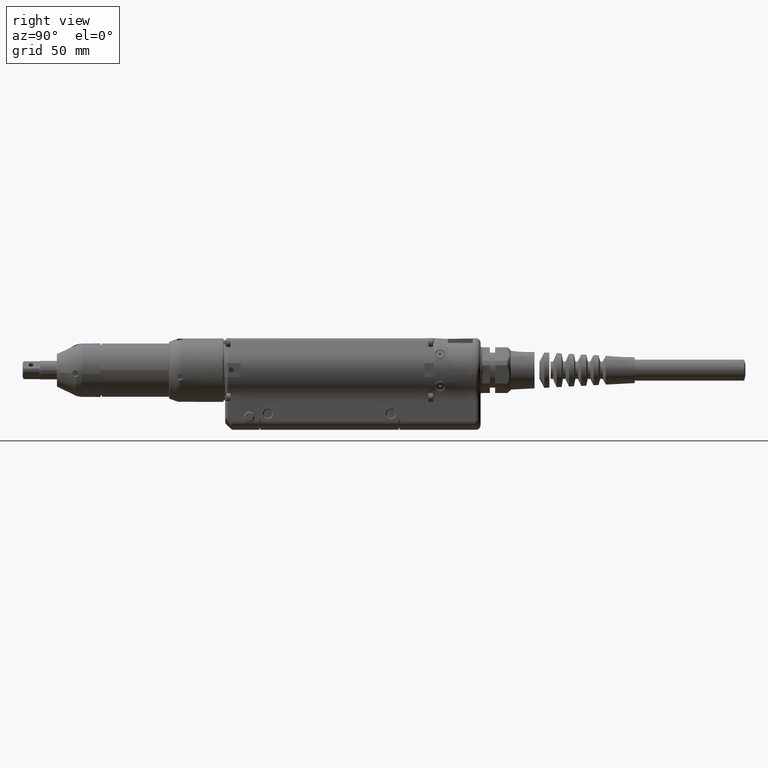
[diagram: clean part render]
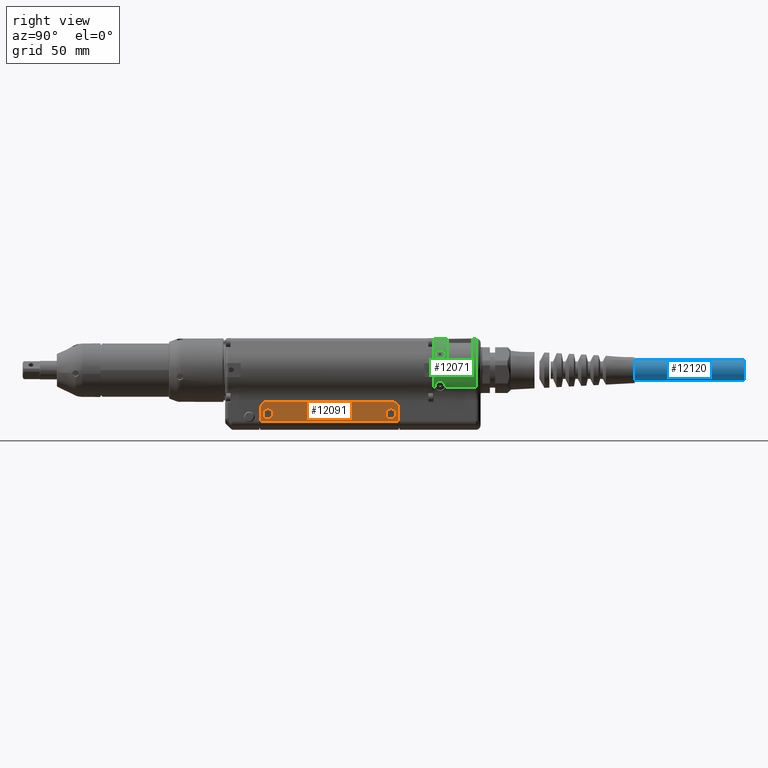
[diagram: same view with three faces highlighted in distinct colors, each labeled with its STEP entity id]
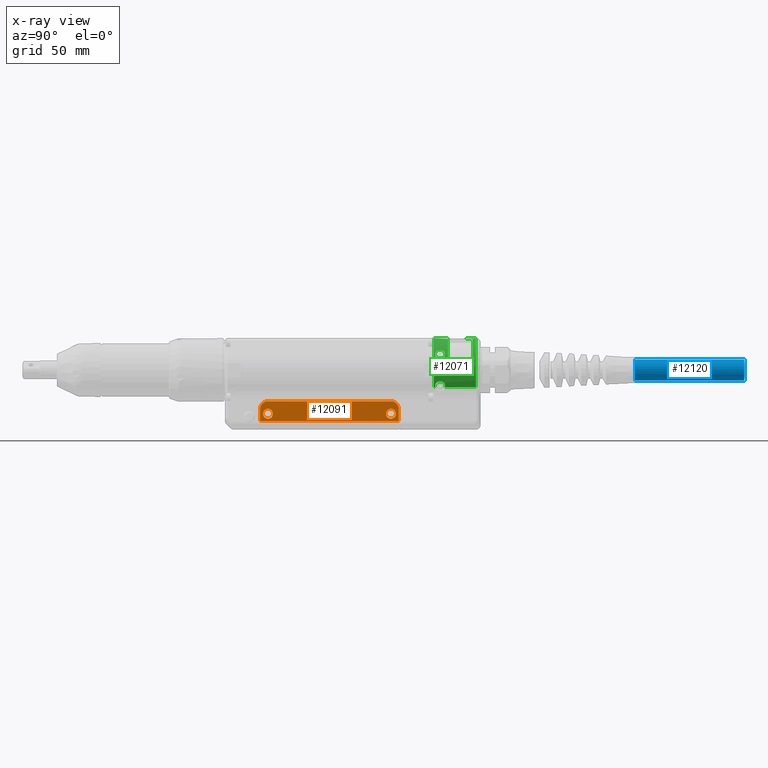
[diagram: x-ray of the same camera — body ghosted, the three highlighted faces saturated]
A machine part, right view with three faces highlighted in distinct colors.
The next image is the same camera in x-ray (body ghosted, the three faces saturated) — at least one of them is partly hidden behind the body in this view.
Their STEP definitions:

[orange] entity #12091 — the highlighted planar face has unit normal (1, -0, -0).
#239=FACE_BOUND('',#2412,.T.);
#240=FACE_BOUND('',#2413,.T.);
#413=PLANE('',#13091);
#1685=FACE_OUTER_BOUND('',#2411,.T.);
#2411=EDGE_LOOP('',(#9232,#9233,#9234,#9235,#9236,#9237));
#2412=EDGE_LOOP('',(#9238));
#2413=EDGE_LOOP('',(#9239));
#3319=LINE('',#19205,#4208);
#3324=LINE('',#19221,#4213);
#3332=LINE('',#19247,#4221);
#3333=LINE('',#19253,#4222);
#4208=VECTOR('',#15129,10.);
#4213=VECTOR('',#15144,10.);
#4221=VECTOR('',#15172,10.);
#4222=VECTOR('',#15179,10.);
#5020=CIRCLE('',#13092,5.);
#5021=CIRCLE('',#13093,5.);
#5022=CIRCLE('',#13094,3.25000059755407);
#5023=CIRCLE('',#13095,3.25000059755407);
#5814=VERTEX_POINT('',#19202);
#5815=VERTEX_POINT('',#19204);
#5820=VERTEX_POINT('',#19218);
#5821=VERTEX_POINT('',#19220);
#5830=VERTEX_POINT('',#19249);
#5831=VERTEX_POINT('',#19251);
#5832=VERTEX_POINT('',#19254);
#5833=VERTEX_POINT('',#19256);
#7105=EDGE_CURVE('',#5814,#5815,#3319,.T.);
#7114=EDGE_CURVE('',#5820,#5821,#3324,.T.);
#7129=EDGE_CURVE('',#5821,#5814,#3332,.T.);
#7130=EDGE_CURVE('',#5815,#5830,#5020,.T.);
#7131=EDGE_CURVE('',#5831,#5820,#5021,.T.);
#7132=EDGE_CURVE('',#5831,#5830,#3333,.T.);
#7133=EDGE_CURVE('',#5832,#5832,#5022,.T.);
#7134=EDGE_CURVE('',#5833,#5833,#5023,.T.);
#9232=ORIENTED_EDGE('',*,*,#7130,.F.);
#9233=ORIENTED_EDGE('',*,*,#7105,.F.);
#9234=ORIENTED_EDGE('',*,*,#7129,.F.);
#9235=ORIENTED_EDGE('',*,*,#7114,.F.);
#9236=ORIENTED_EDGE('',*,*,#7131,.F.);
#9237=ORIENTED_EDGE('',*,*,#7132,.T.);
#9238=ORIENTED_EDGE('',*,*,#7133,.T.);
#9239=ORIENTED_EDGE('',*,*,#7134,.T.);
#12091=ADVANCED_FACE('',(#1685,#239,#240),#413,.T.);
#13091=AXIS2_PLACEMENT_3D('',#19248,#15173,#15174);
#13092=AXIS2_PLACEMENT_3D('',#19250,#15175,#15176);
#13093=AXIS2_PLACEMENT_3D('',#19252,#15177,#15178);
#13094=AXIS2_PLACEMENT_3D('',#19255,#15180,#15181);
#13095=AXIS2_PLACEMENT_3D('',#19257,#15182,#15183);
#15129=DIRECTION('',(6.21206789711975E-13,3.41680368016891E-16,1.));
#15144=DIRECTION('',(-6.21206789711975E-13,-3.41680368016891E-16,-1.));
#15172=DIRECTION('',(-1.14267019239552E-13,-1.,3.41680368087875E-16));
#15173=DIRECTION('center_axis',(1.,-1.14267019239553E-13,-6.21206789711975E-13));
#15174=DIRECTION('ref_axis',(6.21206789711975E-13,3.41680368016891E-16,
1.));
#15175=DIRECTION('center_axis',(-1.,1.14267019239553E-13,6.21206789711975E-13));
#15176=DIRECTION('ref_axis',(3.58336914068951E-13,-0.707106781186547,0.707106781186548));
#15177=DIRECTION('center_axis',(-1.,1.14267019239553E-13,6.21206789711975E-13));
#15178=DIRECTION('ref_axis',(5.19934882409473E-13,0.707106781186548,0.707106781186547));
#15179=DIRECTION('',(-1.14267019239552E-13,-1.,3.41680368087875E-16));
#15180=DIRECTION('center_axis',(-1.,1.14267019239553E-13,6.21206789711975E-13));
#15181=DIRECTION('ref_axis',(-1.14267019239552E-13,-1.,3.41680368087875E-16));
#15182=DIRECTION('center_axis',(-1.,1.14267019239553E-13,6.21206789711975E-13));
#15183=DIRECTION('ref_axis',(-1.14267019239552E-13,-1.,3.41680368087875E-16));
#19202=CARTESIAN_POINT('',(14.9999999999994,22.4999999999972,-32.6993880064032));
#19204=CARTESIAN_POINT('',(15.0000000000042,22.4999999999972,-25.0000000000088));
#19205=CARTESIAN_POINT('',(15.0000000000073,22.4999999999972,-20.0000000000088));
#19218=CARTESIAN_POINT('',(15.0000000000144,111.499999999997,-25.0000000000088));
#19220=CARTESIAN_POINT('',(15.0000000000096,111.499999999997,-32.6993880064032));
#19221=CARTESIAN_POINT('',(15.0000000000175,111.499999999997,-20.0000000000088));
#19247=CARTESIAN_POINT('',(15.0000000000096,111.499999999997,-32.6993880064032));
#19248=CARTESIAN_POINT('Origin',(15.0000000000096,111.499999999997,-32.6993880064032));
#19249=CARTESIAN_POINT('',(15.0000000000079,27.4999999999972,-20.0000000000088));
#19250=CARTESIAN_POINT('Origin',(15.0000000000048,27.4999999999972,-25.0000000000088));
#19251=CARTESIAN_POINT('',(15.0000000000169,106.499999999997,-20.0000000000088));
#19252=CARTESIAN_POINT('Origin',(15.0000000000138,106.499999999997,-25.0000000000088));
#19253=CARTESIAN_POINT('',(15.0000000000175,111.499999999997,-20.0000000000088));
#19254=CARTESIAN_POINT('',(15.0000000000123,109.750000597551,-28.0000000000088));
#19255=CARTESIAN_POINT('Origin',(15.0000000000119,106.499999999997,-28.0000000000088));
#19256=CARTESIAN_POINT('',(15.0000000000033,30.7500005975513,-28.0000000000088));
#19257=CARTESIAN_POINT('Origin',(15.0000000000029,27.4999999999972,-28.0000000000088));

[blue] entity #12120 — the highlighted cylindrical surface (bore or boss wall) has radius 6.75 mm, axis along (0, 1, 0).
#1714=FACE_OUTER_BOUND('',#2448,.T.);
#2448=EDGE_LOOP('',(#9382,#9383,#9384,#9385,#9386));
#3355=LINE('',#19360,#4244);
#4244=VECTOR('',#15315,6.74999999999462);
#5049=CIRCLE('',#13150,6.74999999999505);
#5050=CIRCLE('',#13151,6.74999999999418);
#5051=CIRCLE('',#13152,6.74999999999505);
#5857=VERTEX_POINT('',#19356);
#5858=VERTEX_POINT('',#19357);
#5859=VERTEX_POINT('',#19359);
#7181=EDGE_CURVE('',#5857,#5858,#5049,.T.);
#7182=EDGE_CURVE('',#5857,#5859,#3355,.T.);
#7183=EDGE_CURVE('',#5859,#5859,#5050,.T.);
#7184=EDGE_CURVE('',#5858,#5857,#5051,.T.);
#9382=ORIENTED_EDGE('',*,*,#7181,.F.);
#9383=ORIENTED_EDGE('',*,*,#7182,.T.);
#9384=ORIENTED_EDGE('',*,*,#7183,.T.);
#9385=ORIENTED_EDGE('',*,*,#7182,.F.);
#9386=ORIENTED_EDGE('',*,*,#7184,.F.);
#11758=CYLINDRICAL_SURFACE('',#13149,6.74999999999462);
#12120=ADVANCED_FACE('',(#1714),#11758,.T.);
#13149=AXIS2_PLACEMENT_3D('',#19355,#15311,#15312);
#13150=AXIS2_PLACEMENT_3D('',#19358,#15313,#15314);
#13151=AXIS2_PLACEMENT_3D('',#19361,#15316,#15317);
#13152=AXIS2_PLACEMENT_3D('',#19362,#15318,#15319);
#15311=DIRECTION('center_axis',(3.93858841274555E-13,1.,1.29452016548935E-15));
#15312=DIRECTION('ref_axis',(-0.665763063944601,2.61343272467209E-13,-0.746163214509465));
#15313=DIRECTION('center_axis',(3.93858841274555E-13,1.,1.29452016548935E-15));
#15314=DIRECTION('ref_axis',(0.746163214509465,-2.9302113535668E-13,-0.665763063944601));
#15315=DIRECTION('',(-3.93858841274555E-13,-1.,-1.29452016548935E-15));
#15316=DIRECTION('center_axis',(3.93858841274555E-13,1.,1.29452016548935E-15));
#15317=DIRECTION('ref_axis',(0.746163214509465,-2.9302113535668E-13,-0.665763063944601));
#15318=DIRECTION('center_axis',(3.93858841274555E-13,1.,1.29452016548935E-15));
#15319=DIRECTION('ref_axis',(0.746163214509465,-2.9302113535668E-13,-0.665763063944601));
#19355=CARTESIAN_POINT('Origin',(1.03011646312124E-10,298.110332593401,
6.65049820036084E-13));
#19356=CARTESIAN_POINT('',(4.49390068173931,333.220665186788,5.03660169793558));
#19357=CARTESIAN_POINT('',(-5.03660169781835,333.220665186792,4.49390068162347));
#19358=CARTESIAN_POINT('Origin',(1.1684016122412E-10,333.22066518679,7.10500853595264E-13));
#19359=CARTESIAN_POINT('',(4.49390068171166,263.00000000001,5.03660169793549));
#19360=CARTESIAN_POINT('',(4.49390068172548,298.110332593399,5.03660169793554));
#19361=CARTESIAN_POINT('Origin',(8.91831314001275E-11,263.000000000012,
6.19598786476904E-13));
#19362=CARTESIAN_POINT('Origin',(1.1684016122412E-10,333.22066518679,7.10500853595264E-13));

[green] entity #12071 — the highlighted cylindrical surface (edge-blend (fillet) strip) has radius 20.5 mm, axis along (0, 1, 0).
#231=FACE_BOUND('',#2384,.T.);
#232=FACE_BOUND('',#2385,.T.);
#233=FACE_BOUND('',#2386,.T.);
#234=FACE_BOUND('',#2387,.T.);
#1401=B_SPLINE_CURVE_WITH_KNOTS('',3,(#18990,#18991,#18992,#18993,#18994,
#18995,#18996,#18997,#18998,#18999,#19000,#19001),.UNSPECIFIED.,.F.,.F.,
(4,2,2,2,2,4),(0.416893829124333,0.498158843580507,0.62269710965569,0.747235375730873,
0.871776531445943,0.996317687161014),.UNSPECIFIED.);
#1402=B_SPLINE_CURVE_WITH_KNOTS('',3,(#19003,#19004,#19005,#19006,#19007,
#19008,#19009,#19010,#19011,#19012,#19013,#19014),.UNSPECIFIED.,.F.,.F.,
(4,2,2,2,2,4),(0.996317687161014,1.12085884287608,1.24539999859115,1.36993826466634,
1.49447653074152,1.57574154519769),.UNSPECIFIED.);
#1403=B_SPLINE_CURVE_WITH_KNOTS('',3,(#19019,#19020,#19021,#19022,#19023,
#19024,#19025,#19026,#19027,#19028,#19029,#19030),.UNSPECIFIED.,.F.,.F.,
(4,2,2,2,2,4),(0.416893829124334,0.498158843580507,0.62269710965569,0.747235375730874,
0.871776531445944,0.996317687161014),.UNSPECIFIED.);
#1404=B_SPLINE_CURVE_WITH_KNOTS('',3,(#19031,#19032,#19033,#19034,#19035,
#19036,#19037,#19038,#19039,#19040,#19041,#19042),.UNSPECIFIED.,.F.,.F.,
(4,2,2,2,2,4),(0.996317687161014,1.12085884287608,1.24539999859115,1.36993826466634,
1.49447653074152,1.57574154519769),.UNSPECIFIED.);
#1405=B_SPLINE_CURVE_WITH_KNOTS('',3,(#19046,#19047,#19048,#19049,#19050,
#19051,#19052,#19053,#19054,#19055),.UNSPECIFIED.,.F.,.F.,(4,2,2,2,4),(0.498158843580509,
0.622697109655693,0.747235375730876,0.871776531445947,0.996317687161018),
 .UNSPECIFIED.);
#1406=B_SPLINE_CURVE_WITH_KNOTS('',3,(#19057,#19058,#19059,#19060,#19061,
#19062,#19063,#19064,#19065,#19066),.UNSPECIFIED.,.F.,.F.,(4,2,2,2,4),(0.996317687161018,
1.12085884287609,1.24539999859116,1.36993826466634,1.49447653074153),
 .UNSPECIFIED.);
#1407=B_SPLINE_CURVE_WITH_KNOTS('',3,(#19067,#19068,#19069,#19070,#19071,
#19072,#19073,#19074,#19075,#19076,#19077,#19078,#19079,#19080,#19081,#19082,
#19083,#19084,#19085),.UNSPECIFIED.,.F.,.F.,(4,2,2,2,3,2,2,2,4),(1.49447653074153,
1.61901479681671,1.74355306289189,1.86809421860696,1.99263537432204,2.11717653003711,
2.24171768575218,2.36625595182736,2.49079421790254),.UNSPECIFIED.);
#1408=B_SPLINE_CURVE_WITH_KNOTS('',3,(#19088,#19089,#19090,#19091,#19092,
#19093,#19094,#19095,#19096,#19097),.UNSPECIFIED.,.F.,.F.,(4,2,2,2,4),(0.498158843580509,
0.622697109655693,0.747235375730876,0.871776531445947,0.996317687161018),
 .UNSPECIFIED.);
#1409=B_SPLINE_CURVE_WITH_KNOTS('',3,(#19099,#19100,#19101,#19102,#19103,
#19104,#19105,#19106,#19107,#19108),.UNSPECIFIED.,.F.,.F.,(4,2,2,2,4),(0.996317687161018,
1.12085884287609,1.24539999859116,1.36993826466634,1.49447653074153),
 .UNSPECIFIED.);
#1410=B_SPLINE_CURVE_WITH_KNOTS('',3,(#19109,#19110,#19111,#19112,#19113,
#19114,#19115,#19116,#19117,#19118,#19119,#19120,#19121,#19122,#19123,#19124,
#19125,#19126,#19127),.UNSPECIFIED.,.F.,.F.,(4,2,2,2,3,2,2,2,4),(1.49447653074153,
1.61901479681671,1.74355306289189,1.86809421860696,1.99263537432204,2.11717653003711,
2.24171768575218,2.36625595182736,2.49079421790254),.UNSPECIFIED.);
#1665=FACE_OUTER_BOUND('',#2383,.T.);
#2383=EDGE_LOOP('',(#9085,#9086,#9087,#9088,#9089,#9090,#9091,#9092,#9093,
#9094,#9095,#9096,#9097,#9098,#9099,#9100,#9101,#9102,#9103,#9104,#9105));
#2384=EDGE_LOOP('',(#9106,#9107,#9108));
#2385=EDGE_LOOP('',(#9109,#9110,#9111,#9112));
#2386=EDGE_LOOP('',(#9113,#9114,#9115,#9116));
#2387=EDGE_LOOP('',(#9117,#9118,#9119));
#3284=LINE('',#18889,#4173);
#3286=LINE('',#18896,#4175);
#3294=LINE('',#18953,#4183);
#3297=LINE('',#18962,#4186);
#3302=LINE('',#18977,#4191);
#3305=LINE('',#18986,#4194);
#3306=LINE('',#19015,#4195);
#3307=LINE('',#19043,#4196);
#4173=VECTOR('',#14956,10.);
#4175=VECTOR('',#14962,10.);
#4183=VECTOR('',#15016,10.);
#4186=VECTOR('',#15027,10.);
#4191=VECTOR('',#15040,10.);
#4194=VECTOR('',#15051,10.);
#4195=VECTOR('',#15054,10.);
#4196=VECTOR('',#15059,10.);
#4812=CIRCLE('',#12711,20.5);
#4927=CIRCLE('',#12921,20.5);
#4929=CIRCLE('',#12925,20.5);
#4931=CIRCLE('',#12929,20.5);
#4935=CIRCLE('',#12939,20.5);
#4954=CIRCLE('',#12963,20.5);
#4960=CIRCLE('',#12987,20.5);
#4961=CIRCLE('',#12989,20.5);
#4962=CIRCLE('',#12991,20.5);
#4964=CIRCLE('',#12996,20.5);
#4984=CIRCLE('',#13027,20.5);
#4986=CIRCLE('',#13030,20.5);
#4988=CIRCLE('',#13034,20.5);
#4990=CIRCLE('',#13038,20.5);
#4992=CIRCLE('',#13042,20.5);
#4993=CIRCLE('',#13045,20.5);
#4994=CIRCLE('',#13046,20.5);
#5466=VERTEX_POINT('',#17827);
#5467=VERTEX_POINT('',#17829);
#5694=VERTEX_POINT('',#18642);
#5695=VERTEX_POINT('',#18644);
#5696=VERTEX_POINT('',#18648);
#5698=VERTEX_POINT('',#18654);
#5699=VERTEX_POINT('',#18656);
#5700=VERTEX_POINT('',#18660);
#5702=VERTEX_POINT('',#18666);
#5708=VERTEX_POINT('',#18691);
#5730=VERTEX_POINT('',#18745);
#5750=VERTEX_POINT('',#18816);
#5751=VERTEX_POINT('',#18820);
#5765=VERTEX_POINT('',#18869);
#5766=VERTEX_POINT('',#18870);
#5769=VERTEX_POINT('',#18894);
#5771=VERTEX_POINT('',#18906);
#5774=VERTEX_POINT('',#18943);
#5775=VERTEX_POINT('',#18945);
#5777=VERTEX_POINT('',#18951);
#5779=VERTEX_POINT('',#18957);
#5782=VERTEX_POINT('',#18967);
#5783=VERTEX_POINT('',#18969);
#5785=VERTEX_POINT('',#18975);
#5787=VERTEX_POINT('',#18981);
#5788=VERTEX_POINT('',#18988);
#5789=VERTEX_POINT('',#18989);
#5790=VERTEX_POINT('',#19002);
#5791=VERTEX_POINT('',#19018);
#5792=VERTEX_POINT('',#19044);
#5793=VERTEX_POINT('',#19045);
#5794=VERTEX_POINT('',#19056);
#5795=VERTEX_POINT('',#19086);
#5796=VERTEX_POINT('',#19087);
#5797=VERTEX_POINT('',#19098);
#6584=EDGE_CURVE('',#5466,#5467,#4812,.T.);
#6907=EDGE_CURVE('',#5695,#5694,#4927,.T.);
#6914=EDGE_CURVE('',#5698,#5699,#4929,.T.);
#6919=EDGE_CURVE('',#5700,#5702,#4931,.T.);
#6932=EDGE_CURVE('',#5696,#5708,#4935,.T.);
#6958=EDGE_CURVE('',#5467,#5730,#4954,.T.);
#7001=EDGE_CURVE('',#5695,#5466,#4960,.T.);
#7002=EDGE_CURVE('',#5750,#5702,#4961,.T.);
#7003=EDGE_CURVE('',#5730,#5751,#4962,.T.);
#7011=EDGE_CURVE('',#5696,#5694,#4964,.T.);
#7022=EDGE_CURVE('',#5766,#5708,#3284,.T.);
#7026=EDGE_CURVE('',#5769,#5765,#3286,.T.);
#7040=EDGE_CURVE('',#5771,#5769,#4984,.T.);
#7043=EDGE_CURVE('',#5775,#5774,#4986,.T.);
#7047=EDGE_CURVE('',#5774,#5777,#3294,.T.);
#7050=EDGE_CURVE('',#5777,#5779,#4988,.T.);
#7052=EDGE_CURVE('',#5779,#5775,#3297,.T.);
#7055=EDGE_CURVE('',#5783,#5782,#4990,.T.);
#7059=EDGE_CURVE('',#5782,#5785,#3302,.T.);
#7062=EDGE_CURVE('',#5785,#5787,#4992,.T.);
#7064=EDGE_CURVE('',#5787,#5783,#3305,.T.);
#7065=EDGE_CURVE('',#5788,#5789,#1401,.T.);
#7066=EDGE_CURVE('',#5789,#5790,#1402,.T.);
#7067=EDGE_CURVE('',#5698,#5790,#3306,.T.);
#7068=EDGE_CURVE('',#5700,#5699,#4993,.T.);
#7069=EDGE_CURVE('',#5751,#5750,#4994,.T.);
#7070=EDGE_CURVE('',#5766,#5791,#1403,.T.);
#7071=EDGE_CURVE('',#5791,#5765,#1404,.T.);
#7072=EDGE_CURVE('',#5788,#5771,#3307,.T.);
#7073=EDGE_CURVE('',#5792,#5793,#1405,.T.);
#7074=EDGE_CURVE('',#5793,#5794,#1406,.T.);
#7075=EDGE_CURVE('',#5794,#5792,#1407,.T.);
#7076=EDGE_CURVE('',#5795,#5796,#1408,.T.);
#7077=EDGE_CURVE('',#5796,#5797,#1409,.T.);
#7078=EDGE_CURVE('',#5797,#5795,#1410,.T.);
#9085=ORIENTED_EDGE('',*,*,#7065,.T.);
#9086=ORIENTED_EDGE('',*,*,#7066,.T.);
#9087=ORIENTED_EDGE('',*,*,#7067,.F.);
#9088=ORIENTED_EDGE('',*,*,#6914,.T.);
#9089=ORIENTED_EDGE('',*,*,#7068,.F.);
#9090=ORIENTED_EDGE('',*,*,#6919,.T.);
#9091=ORIENTED_EDGE('',*,*,#7002,.F.);
#9092=ORIENTED_EDGE('',*,*,#7069,.F.);
#9093=ORIENTED_EDGE('',*,*,#7003,.F.);
#9094=ORIENTED_EDGE('',*,*,#6958,.F.);
#9095=ORIENTED_EDGE('',*,*,#6584,.F.);
#9096=ORIENTED_EDGE('',*,*,#7001,.F.);
#9097=ORIENTED_EDGE('',*,*,#6907,.T.);
#9098=ORIENTED_EDGE('',*,*,#7011,.F.);
#9099=ORIENTED_EDGE('',*,*,#6932,.T.);
#9100=ORIENTED_EDGE('',*,*,#7022,.F.);
#9101=ORIENTED_EDGE('',*,*,#7070,.T.);
#9102=ORIENTED_EDGE('',*,*,#7071,.T.);
#9103=ORIENTED_EDGE('',*,*,#7026,.F.);
#9104=ORIENTED_EDGE('',*,*,#7040,.F.);
#9105=ORIENTED_EDGE('',*,*,#7072,.F.);
#9106=ORIENTED_EDGE('',*,*,#7073,.T.);
#9107=ORIENTED_EDGE('',*,*,#7074,.T.);
#9108=ORIENTED_EDGE('',*,*,#7075,.T.);
#9109=ORIENTED_EDGE('',*,*,#7047,.T.);
#9110=ORIENTED_EDGE('',*,*,#7050,.T.);
#9111=ORIENTED_EDGE('',*,*,#7052,.T.);
#9112=ORIENTED_EDGE('',*,*,#7043,.T.);
#9113=ORIENTED_EDGE('',*,*,#7059,.T.);
#9114=ORIENTED_EDGE('',*,*,#7062,.T.);
#9115=ORIENTED_EDGE('',*,*,#7064,.T.);
#9116=ORIENTED_EDGE('',*,*,#7055,.T.);
#9117=ORIENTED_EDGE('',*,*,#7076,.T.);
#9118=ORIENTED_EDGE('',*,*,#7077,.T.);
#9119=ORIENTED_EDGE('',*,*,#7078,.T.);
#11740=CYLINDRICAL_SURFACE('',#13044,20.5);
#12071=ADVANCED_FACE('',(#1665,#231,#232,#233,#234),#11740,.T.);
#12711=AXIS2_PLACEMENT_3D('',#17830,#14127,#14128);
#12921=AXIS2_PLACEMENT_3D('',#18645,#14715,#14716);
#12925=AXIS2_PLACEMENT_3D('',#18658,#14728,#14729);
#12929=AXIS2_PLACEMENT_3D('',#18668,#14739,#14740);
#12939=AXIS2_PLACEMENT_3D('',#18693,#14768,#14769);
#12963=AXIS2_PLACEMENT_3D('',#18746,#14823,#14824);
#12987=AXIS2_PLACEMENT_3D('',#18828,#14908,#14909);
#12989=AXIS2_PLACEMENT_3D('',#18830,#14912,#14913);
#12991=AXIS2_PLACEMENT_3D('',#18832,#14916,#14917);
#12996=AXIS2_PLACEMENT_3D('',#18848,#14932,#14933);
#13027=AXIS2_PLACEMENT_3D('',#18938,#15002,#15003);
#13030=AXIS2_PLACEMENT_3D('',#18946,#15009,#15010);
#13034=AXIS2_PLACEMENT_3D('',#18959,#15022,#15023);
#13038=AXIS2_PLACEMENT_3D('',#18970,#15033,#15034);
#13042=AXIS2_PLACEMENT_3D('',#18983,#15046,#15047);
#13044=AXIS2_PLACEMENT_3D('',#18987,#15052,#15053);
#13045=AXIS2_PLACEMENT_3D('',#19016,#15055,#15056);
#13046=AXIS2_PLACEMENT_3D('',#19017,#15057,#15058);
#14127=DIRECTION('center_axis',(-2.99063832450032E-13,-1.,-6.66133814775047E-16));
#14128=DIRECTION('ref_axis',(1.,-2.99063832450031E-13,-6.19370871729231E-13));
#14715=DIRECTION('center_axis',(1.14883432544903E-13,1.,6.08366502839908E-16));
#14716=DIRECTION('ref_axis',(-0.866025403784749,9.97961543092976E-14,-0.499999999999462));
#14728=DIRECTION('center_axis',(1.14883432544903E-13,1.,6.08366502839908E-16));
#14729=DIRECTION('ref_axis',(0.731707317073593,-8.4475722344597E-14,0.681618956705991));
#14739=DIRECTION('center_axis',(1.14883432544903E-13,1.,6.08366502839908E-16));
#14740=DIRECTION('ref_axis',(0.975609756097424,-1.11947853738291E-13,-0.219512195122558));
#14768=DIRECTION('center_axis',(1.14883432544903E-13,1.,6.08366502839908E-16));
#14769=DIRECTION('ref_axis',(-0.975609756097425,1.11947853738291E-13,0.219512195122557));
#14823=DIRECTION('center_axis',(-1.14883432544903E-13,-1.,-6.08366502839908E-16));
#14824=DIRECTION('ref_axis',(1.,-2.99063832450031E-13,-6.19370871729231E-13));
#14908=DIRECTION('center_axis',(-1.14883432544903E-13,-1.,-6.08366502839908E-16));
#14909=DIRECTION('ref_axis',(1.,-2.99063832450031E-13,-6.19370871729231E-13));
#14912=DIRECTION('center_axis',(-1.14883432544903E-13,-1.,-6.08366502839908E-16));
#14913=DIRECTION('ref_axis',(1.,-2.99063832450031E-13,-6.19370871729231E-13));
#14916=DIRECTION('center_axis',(-1.14883432544903E-13,-1.,-6.08366502839908E-16));
#14917=DIRECTION('ref_axis',(1.,-2.99063832450031E-13,-6.19370871729231E-13));
#14932=DIRECTION('center_axis',(-2.99063832450032E-13,-1.,-6.66133814775047E-16));
#14933=DIRECTION('ref_axis',(1.,-2.99063832450031E-13,-6.19370871729231E-13));
#14956=DIRECTION('',(-2.99063832450032E-13,-1.,-6.66133814775047E-16));
#14962=DIRECTION('',(-2.99063832450032E-13,-1.,-6.66133814775047E-16));
#15002=DIRECTION('center_axis',(2.99063832450032E-13,1.,6.66133814775047E-16));
#15003=DIRECTION('ref_axis',(6.19432104069188E-13,-6.66133814960297E-16,
1.));
#15009=DIRECTION('center_axis',(2.99063832450032E-13,1.,6.66133814775047E-16));
#15010=DIRECTION('ref_axis',(1.,-2.99063832450031E-13,-6.19370871729231E-13));
#15016=DIRECTION('',(-2.99063832450032E-13,-1.,-6.66133814775047E-16));
#15022=DIRECTION('center_axis',(-2.99063832450032E-13,-1.,-6.66133814775047E-16));
#15023=DIRECTION('ref_axis',(1.,-2.99063832450031E-13,-6.19370871729231E-13));
#15027=DIRECTION('',(2.99063832450032E-13,1.,6.66133814775047E-16));
#15033=DIRECTION('center_axis',(2.99063832450032E-13,1.,6.66133814775047E-16));
#15034=DIRECTION('ref_axis',(1.,-2.99063832450031E-13,-6.19370871729231E-13));
#15040=DIRECTION('',(-2.99063832450032E-13,-1.,-6.66133814775047E-16));
#15046=DIRECTION('center_axis',(-2.99063832450032E-13,-1.,-6.66133814775047E-16));
#15047=DIRECTION('ref_axis',(1.,-2.99063832450031E-13,-6.19370871729231E-13));
#15051=DIRECTION('',(2.99063832450032E-13,1.,6.66133814775047E-16));
#15052=DIRECTION('center_axis',(2.99063832450032E-13,1.,6.66133814775047E-16));
#15053=DIRECTION('ref_axis',(9.40707762640804E-13,-6.66133815056353E-16,
1.));
#15054=DIRECTION('',(2.99063832450032E-13,1.,6.66133814775047E-16));
#15055=DIRECTION('center_axis',(-2.99063832450032E-13,-1.,-6.66133814775047E-16));
#15056=DIRECTION('ref_axis',(1.,-2.99063832450031E-13,-6.19370871729231E-13));
#15057=DIRECTION('center_axis',(-2.99063832450032E-13,-1.,-6.66133814775047E-16));
#15058=DIRECTION('ref_axis',(1.,-2.99063832450031E-13,-6.19370871729231E-13));
#15059=DIRECTION('',(2.99063832450032E-13,1.,6.66133814775047E-16));
#17827=CARTESIAN_POINT('',(14.4913767462239,133.999999999995,14.4999999999915));
#17829=CARTESIAN_POINT('',(7.00000000001281,133.999999999997,19.2678488680028));
#17830=CARTESIAN_POINT('Origin',(2.54800915762334E-11,133.999999999999,
4.73876448670893E-13));
#18642=CARTESIAN_POINT('',(20.0000000000036,133.999999999997,4.49999999998808));
#18644=CARTESIAN_POINT('',(17.7535207775882,133.999999999997,10.2499999999895));
#18645=CARTESIAN_POINT('Origin',(8.54285863358099E-13,133.999999999999,
4.738764486709E-13));
#18648=CARTESIAN_POINT('',(19.9999999999981,133.999999999997,-4.50000000001195));
#18654=CARTESIAN_POINT('',(-17.3239436619778,134.000000000001,-10.9604277287239));
#18656=CARTESIAN_POINT('',(-20.0000000000019,134.000000000001,-4.49999999998713));
#18658=CARTESIAN_POINT('Origin',(8.54285863358099E-13,133.999999999999,
4.738764486709E-13));
#18660=CARTESIAN_POINT('',(-19.9999999999964,134.000000000001,4.50000000001291));
#18666=CARTESIAN_POINT('',(-17.7535207775738,134.000000000001,10.2500000000115));
#18668=CARTESIAN_POINT('Origin',(8.54285863358099E-13,133.999999999999,
4.738764486709E-13));
#18691=CARTESIAN_POINT('',(17.3239436619659,133.999999999997,-10.9604277287454));
#18693=CARTESIAN_POINT('Origin',(8.54285863358099E-13,133.999999999999,
4.738764486709E-13));
#18745=CARTESIAN_POINT('',(3.81988065463392E-11,133.999999999999,20.5000000000005));
#18746=CARTESIAN_POINT('Origin',(2.54800915762325E-11,133.999999999996,
4.73876448670891E-13));
#18816=CARTESIAN_POINT('',(-14.491376746155,134.000000000003,14.5000000000095));
#18820=CARTESIAN_POINT('',(-6.99999999998719,134.000000000001,19.2678488679936));
#18828=CARTESIAN_POINT('Origin',(2.54800915762325E-11,133.999999999996,
4.73876448670891E-13));
#18830=CARTESIAN_POINT('Origin',(2.54800915762325E-11,133.999999999996,
4.73876448670891E-13));
#18832=CARTESIAN_POINT('Origin',(2.54800915762325E-11,133.999999999996,
4.73876448670891E-13));
#18848=CARTESIAN_POINT('Origin',(2.54800915762334E-11,133.999999999999,
4.73876448670893E-13));
#18869=CARTESIAN_POINT('',(17.3239436619927,141.193906471388,-10.9604277287454));
#18870=CARTESIAN_POINT('',(17.3239436619908,134.806093528599,-10.9604277287454));
#18889=CARTESIAN_POINT('',(17.3239436619905,133.999999999994,-10.9604277287454));
#18894=CARTESIAN_POINT('',(17.3239436619986,160.999999999994,-10.9604277287454));
#18896=CARTESIAN_POINT('',(17.3239436619905,133.999999999994,-10.9604277287454));
#18906=CARTESIAN_POINT('',(-17.3239436619451,161.000000000004,-10.9604277287239));
#18938=CARTESIAN_POINT('Origin',(3.35548150523843E-11,160.999999999999,
4.9186206166982E-13));
#18943=CARTESIAN_POINT('',(-3.99999999995459,159.,20.1059692628861));
#18945=CARTESIAN_POINT('',(-20.2792997906421,159.000000000005,-2.99999999998695));
#18946=CARTESIAN_POINT('Origin',(3.29566873874842E-11,158.999999999999,
4.9052979404027E-13));
#18951=CARTESIAN_POINT('',(-3.99999999995937,143.,20.1059692628861));
#18953=CARTESIAN_POINT('',(-3.99999999996206,134.,20.1059692628861));
#18957=CARTESIAN_POINT('',(-20.2792997906469,143.000000000005,-2.99999999998696));
#18959=CARTESIAN_POINT('Origin',(2.81716660682837E-11,142.999999999999,
4.79871653003869E-13));
#18962=CARTESIAN_POINT('',(-20.2792997906496,134.000000000005,-2.99999999998696));
#18967=CARTESIAN_POINT('',(20.2792997907044,158.999999999993,-3.00000000001207));
#18969=CARTESIAN_POINT('',(4.00000000004541,158.999999999998,20.1059692628811));
#18970=CARTESIAN_POINT('Origin',(3.29566873874842E-11,158.999999999999,
4.9052979404027E-13));
#18975=CARTESIAN_POINT('',(20.2792997906996,142.999999999993,-3.00000000001208));
#18977=CARTESIAN_POINT('',(20.2792997906969,133.999999999993,-3.00000000001209));
#18981=CARTESIAN_POINT('',(4.00000000004063,142.999999999998,20.1059692628811));
#18983=CARTESIAN_POINT('Origin',(2.81716660682837E-11,142.999999999999,
4.79871653003869E-13));
#18986=CARTESIAN_POINT('',(4.00000000003793,133.999999999998,20.1059692628811));
#18987=CARTESIAN_POINT('Origin',(2.54800915762334E-11,133.999999999999,
4.73876448670893E-13));
#18988=CARTESIAN_POINT('',(-17.323943661951,141.193906471399,-10.9604277287239));
#18989=CARTESIAN_POINT('',(-19.1719861887636,138.000000000005,-7.25843961033139));
#18990=CARTESIAN_POINT('Ctrl Pts',(-17.323943661951,141.193906471399,-10.9604277287239));
#18991=CARTESIAN_POINT('Ctrl Pts',(-17.4718402988617,141.265736102992,-10.7266637672206));
#18992=CARTESIAN_POINT('Ctrl Pts',(-17.6180790867995,141.300000000004,-10.4845918898485));
#18993=CARTESIAN_POINT('Ctrl Pts',(-17.9610845543514,141.300000000004,-9.89048899277381));
#18994=CARTESIAN_POINT('Ctrl Pts',(-18.1702076668436,141.216888987846,-9.50049270622778));
#18995=CARTESIAN_POINT('Ctrl Pts',(-18.5331469211265,140.879885821676,-8.77144648986339));
#18996=CARTESIAN_POINT('Ctrl Pts',(-18.6875995685963,140.626033304569,-8.43269527789733));
#18997=CARTESIAN_POINT('Ctrl Pts',(-18.9221223393258,140.040864662566,-7.89240251674596));
#18998=CARTESIAN_POINT('Ctrl Pts',(-19.0180255174553,139.670274103298,-7.65465475337624));
#18999=CARTESIAN_POINT('Ctrl Pts',(-19.1426386324182,138.857441942713,-7.33746689889183));
#19000=CARTESIAN_POINT('Ctrl Pts',(-19.1719861887635,138.415137185722,-7.25843961033139));
#19001=CARTESIAN_POINT('Ctrl Pts',(-19.1719861887636,138.000000000005,-7.2584396103314));
#19002=CARTESIAN_POINT('',(-17.3239436619529,134.80609352861,-10.9604277287239));
#19003=CARTESIAN_POINT('Ctrl Pts',(-19.1719861887636,138.000000000005,-7.25843961033139));
#19004=CARTESIAN_POINT('Ctrl Pts',(-19.1719861887637,137.584862814288,-7.2584396103314));
#19005=CARTESIAN_POINT('Ctrl Pts',(-19.1426386324187,137.142558057296,-7.33746689889183));
#19006=CARTESIAN_POINT('Ctrl Pts',(-19.0180255174563,136.329725896711,-7.65465475337624));
#19007=CARTESIAN_POINT('Ctrl Pts',(-18.922122339327,135.959135337443,-7.89240251674597));
#19008=CARTESIAN_POINT('Ctrl Pts',(-18.6875995685978,135.37396669544,-8.43269527789733));
#19009=CARTESIAN_POINT('Ctrl Pts',(-18.5331469211282,135.120114178333,-8.7714464898634));
#19010=CARTESIAN_POINT('Ctrl Pts',(-18.1702076668455,134.783111012163,-9.50049270622779));
#19011=CARTESIAN_POINT('Ctrl Pts',(-17.9610845543534,134.700000000004,-9.89048899277382));
#19012=CARTESIAN_POINT('Ctrl Pts',(-17.6180790868015,134.700000000004,-10.4845918898485));
#19013=CARTESIAN_POINT('Ctrl Pts',(-17.4718402988636,134.734263897017,-10.7266637672206));
#19014=CARTESIAN_POINT('Ctrl Pts',(-17.3239436619529,134.80609352861,-10.9604277287239));
#19015=CARTESIAN_POINT('',(-17.3239436619531,134.000000000004,-10.9604277287239));
#19016=CARTESIAN_POINT('Origin',(2.54800915762334E-11,133.999999999999,
4.73876448670893E-13));
#19017=CARTESIAN_POINT('Origin',(2.54800915762334E-11,133.999999999999,
4.73876448670893E-13));
#19018=CARTESIAN_POINT('',(19.171986188808,137.999999999993,-7.25843961035515));
#19019=CARTESIAN_POINT('Ctrl Pts',(17.3239436619908,134.806093528599,-10.9604277287454));
#19020=CARTESIAN_POINT('Ctrl Pts',(17.4718402989017,134.734263897006,-10.7266637672423));
#19021=CARTESIAN_POINT('Ctrl Pts',(17.6180790868399,134.699999999994,-10.4845918898703));
#19022=CARTESIAN_POINT('Ctrl Pts',(17.9610845543925,134.699999999994,-9.89048899279607));
#19023=CARTESIAN_POINT('Ctrl Pts',(18.1702076668852,134.783111012152,-9.5004927062503));
#19024=CARTESIAN_POINT('Ctrl Pts',(18.5331469211689,135.120114178322,-8.77144648988635));
#19025=CARTESIAN_POINT('Ctrl Pts',(18.6875995686392,135.373966695429,-8.43269527792048));
#19026=CARTESIAN_POINT('Ctrl Pts',(18.9221223393693,135.959135337431,-7.89240251676941));
#19027=CARTESIAN_POINT('Ctrl Pts',(19.0180255174992,136.3297258967,-7.6546547533998));
#19028=CARTESIAN_POINT('Ctrl Pts',(19.1426386324625,137.142558057284,-7.33746689891554));
#19029=CARTESIAN_POINT('Ctrl Pts',(19.1719861888078,137.584862814276,-7.25843961035515));
#19030=CARTESIAN_POINT('Ctrl Pts',(19.171986188808,137.999999999993,-7.25843961035515));
#19031=CARTESIAN_POINT('Ctrl Pts',(19.171986188808,137.999999999993,-7.25843961035515));
#19032=CARTESIAN_POINT('Ctrl Pts',(19.1719861888081,138.41513718571,-7.25843961035515));
#19033=CARTESIAN_POINT('Ctrl Pts',(19.142638632463,138.857441942702,-7.33746689891554));
#19034=CARTESIAN_POINT('Ctrl Pts',(19.0180255175002,139.670274103286,-7.6546547533998));
#19035=CARTESIAN_POINT('Ctrl Pts',(18.9221223393706,140.040864662555,-7.8924025167694));
#19036=CARTESIAN_POINT('Ctrl Pts',(18.6875995686408,140.626033304558,-8.43269527792047));
#19037=CARTESIAN_POINT('Ctrl Pts',(18.5331469211707,140.879885821665,-8.77144648988635));
#19038=CARTESIAN_POINT('Ctrl Pts',(18.1702076668871,141.216888987835,-9.50049270625029));
#19039=CARTESIAN_POINT('Ctrl Pts',(17.9610845543945,141.299999999994,-9.89048899279606));
#19040=CARTESIAN_POINT('Ctrl Pts',(17.6180790868419,141.299999999994,-10.4845918898703));
#19041=CARTESIAN_POINT('Ctrl Pts',(17.4718402989037,141.265736102981,-10.7266637672423));
#19042=CARTESIAN_POINT('Ctrl Pts',(17.3239436619927,141.193906471388,-10.9604277287454));
#19043=CARTESIAN_POINT('',(-17.3239436619531,134.000000000004,-10.9604277287239));
#19044=CARTESIAN_POINT('',(17.753520777613,134.699999999994,10.2499999999895));
#19045=CARTESIAN_POINT('',(15.8719861888205,137.999999999994,12.9742072753117));
#19046=CARTESIAN_POINT('Ctrl Pts',(17.753520777613,134.699999999994,10.2499999999895));
#19047=CARTESIAN_POINT('Ctrl Pts',(17.5459570008213,134.699999999994,10.6095110072042));
#19048=CARTESIAN_POINT('Ctrl Pts',(17.3127718655374,134.783111012152,10.9856150784142));
#19049=CARTESIAN_POINT('Ctrl Pts',(16.8628689487752,135.120114178322,11.6644528008364));
#19050=CARTESIAN_POINT('Ctrl Pts',(16.6467281173852,135.373966695429,11.9675883232102));
#19051=CARTESIAN_POINT('Ctrl Pts',(16.2960822461127,135.959135337432,12.4408373810038));
#19052=CARTESIAN_POINT('Ctrl Pts',(16.1381382324066,136.329725896701,12.6427658512526));
#19053=CARTESIAN_POINT('Ctrl Pts',(15.9257520501331,137.142558057285,12.9092779016975));
#19054=CARTESIAN_POINT('Ctrl Pts',(15.8719861888204,137.584862814277,12.9742072753117));
#19055=CARTESIAN_POINT('Ctrl Pts',(15.8719861888205,137.999999999994,12.9742072753117));
#19056=CARTESIAN_POINT('',(17.753520777615,141.299999999994,10.2499999999895));
#19057=CARTESIAN_POINT('Ctrl Pts',(15.8719861888205,137.999999999994,12.9742072753117));
#19058=CARTESIAN_POINT('Ctrl Pts',(15.8719861888206,138.415137185711,12.9742072753117));
#19059=CARTESIAN_POINT('Ctrl Pts',(15.9257520501336,138.857441942703,12.9092779016975));
#19060=CARTESIAN_POINT('Ctrl Pts',(16.1381382324076,139.670274103287,12.6427658512526));
#19061=CARTESIAN_POINT('Ctrl Pts',(16.2960822461139,140.040864662556,12.4408373810038));
#19062=CARTESIAN_POINT('Ctrl Pts',(16.6467281173867,140.626033304558,11.9675883232102));
#19063=CARTESIAN_POINT('Ctrl Pts',(16.8628689487769,140.879885821665,11.6644528008364));
#19064=CARTESIAN_POINT('Ctrl Pts',(17.3127718655393,141.216888987835,10.9856150784142));
#19065=CARTESIAN_POINT('Ctrl Pts',(17.5459570008233,141.299999999994,10.6095110072042));
#19066=CARTESIAN_POINT('Ctrl Pts',(17.753520777615,141.299999999994,10.2499999999895));
#19067=CARTESIAN_POINT('Ctrl Pts',(17.753520777615,141.299999999994,10.2499999999895));
#19068=CARTESIAN_POINT('Ctrl Pts',(17.9610845544068,141.299999999994,9.89048899277477));
#19069=CARTESIAN_POINT('Ctrl Pts',(18.1702076668989,141.216888987835,9.50049270622873));
#19070=CARTESIAN_POINT('Ctrl Pts',(18.5331469211815,140.879885821665,8.77144648986434));
#19071=CARTESIAN_POINT('Ctrl Pts',(18.6875995686512,140.626033304558,8.43269527789827));
#19072=CARTESIAN_POINT('Ctrl Pts',(18.9221223393803,140.040864662555,7.89240251674691));
#19073=CARTESIAN_POINT('Ctrl Pts',(19.0180255175096,139.670274103286,7.65465475337718));
#19074=CARTESIAN_POINT('Ctrl Pts',(19.1426386324721,138.857441942702,7.33746689889276));
#19075=CARTESIAN_POINT('Ctrl Pts',(19.1719861888171,138.41513718571,7.25843961033233));
#19076=CARTESIAN_POINT('Ctrl Pts',(19.171986188817,137.999999999993,7.25843961033233));
#19077=CARTESIAN_POINT('Ctrl Pts',(19.1719861888168,137.584862814276,7.25843961033233));
#19078=CARTESIAN_POINT('Ctrl Pts',(19.1426386324715,137.142558057284,7.33746689889276));
#19079=CARTESIAN_POINT('Ctrl Pts',(19.0180255175086,136.3297258967,7.65465475337718));
#19080=CARTESIAN_POINT('Ctrl Pts',(18.9221223393791,135.959135337431,7.8924025167469));
#19081=CARTESIAN_POINT('Ctrl Pts',(18.6875995686496,135.373966695429,8.43269527789827));
#19082=CARTESIAN_POINT('Ctrl Pts',(18.5331469211798,135.120114178322,8.77144648986433));
#19083=CARTESIAN_POINT('Ctrl Pts',(18.170207666897,134.783111012152,9.50049270622873));
#19084=CARTESIAN_POINT('Ctrl Pts',(17.9610845544048,134.699999999994,9.89048899277476));
#19085=CARTESIAN_POINT('Ctrl Pts',(17.753520777613,134.699999999994,10.2499999999895));
#19086=CARTESIAN_POINT('',(-17.753520777547,141.300000000004,10.2500000000115));
#19087=CARTESIAN_POINT('',(-15.8719861887511,138.000000000004,12.9742072753313));
#19088=CARTESIAN_POINT('Ctrl Pts',(-17.753520777547,141.300000000004,10.2500000000115));
#19089=CARTESIAN_POINT('Ctrl Pts',(-17.5459570007548,141.300000000004,10.6095110072259));
#19090=CARTESIAN_POINT('Ctrl Pts',(-17.3127718654704,141.216888987845,10.9856150784356));
#19091=CARTESIAN_POINT('Ctrl Pts',(-16.8628689487074,140.879885821675,11.6644528008572));
#19092=CARTESIAN_POINT('Ctrl Pts',(-16.646728117317,140.626033304568,11.9675883232308));
#19093=CARTESIAN_POINT('Ctrl Pts',(-16.2960822460439,140.040864662566,12.440837381024));
#19094=CARTESIAN_POINT('Ctrl Pts',(-16.1381382323376,139.670274103297,12.6427658512726));
#19095=CARTESIAN_POINT('Ctrl Pts',(-15.9257520500638,138.857441942712,12.9092779017172));
#19096=CARTESIAN_POINT('Ctrl Pts',(-15.871986188751,138.415137185721,12.9742072753313));
#19097=CARTESIAN_POINT('Ctrl Pts',(-15.8719861887511,138.000000000004,12.9742072753313));
#19098=CARTESIAN_POINT('',(-17.753520777549,134.700000000004,10.2500000000115));
#19099=CARTESIAN_POINT('Ctrl Pts',(-15.8719861887511,138.000000000004,12.9742072753313));
#19100=CARTESIAN_POINT('Ctrl Pts',(-15.8719861887512,137.584862814287,12.9742072753313));
#19101=CARTESIAN_POINT('Ctrl Pts',(-15.9257520500643,137.142558057295,12.9092779017172));
#19102=CARTESIAN_POINT('Ctrl Pts',(-16.1381382323386,136.329725896711,12.6427658512726));
#19103=CARTESIAN_POINT('Ctrl Pts',(-16.2960822460451,135.959135337442,12.440837381024));
#19104=CARTESIAN_POINT('Ctrl Pts',(-16.6467281173186,135.373966695439,11.9675883232308));
#19105=CARTESIAN_POINT('Ctrl Pts',(-16.8628689487091,135.120114178333,11.6644528008572));
#19106=CARTESIAN_POINT('Ctrl Pts',(-17.3127718654724,134.783111012163,10.9856150784356));
#19107=CARTESIAN_POINT('Ctrl Pts',(-17.5459570007568,134.700000000004,10.6095110072259));
#19108=CARTESIAN_POINT('Ctrl Pts',(-17.753520777549,134.700000000004,10.2500000000115));
#19109=CARTESIAN_POINT('Ctrl Pts',(-17.753520777549,134.700000000004,10.2500000000115));
#19110=CARTESIAN_POINT('Ctrl Pts',(-17.9610845543412,134.700000000004,9.89048899279701));
#19111=CARTESIAN_POINT('Ctrl Pts',(-18.1702076668338,134.783111012163,9.50049270625124));
#19112=CARTESIAN_POINT('Ctrl Pts',(-18.5331469211173,135.120114178333,8.77144648988729));
#19113=CARTESIAN_POINT('Ctrl Pts',(-18.6875995685874,135.37396669544,8.43269527792142));
#19114=CARTESIAN_POINT('Ctrl Pts',(-18.9221223393172,135.959135337443,7.89240251677034));
#19115=CARTESIAN_POINT('Ctrl Pts',(-19.0180255174468,136.329725896711,7.65465475340074));
#19116=CARTESIAN_POINT('Ctrl Pts',(-19.1426386324096,137.142558057296,7.33746689891648));
#19117=CARTESIAN_POINT('Ctrl Pts',(-19.1719861887547,137.584862814288,7.25843961035608));
#19118=CARTESIAN_POINT('Ctrl Pts',(-19.1719861887546,138.000000000005,7.25843961035608));
#19119=CARTESIAN_POINT('Ctrl Pts',(-19.1719861887545,138.415137185722,7.25843961035608));
#19120=CARTESIAN_POINT('Ctrl Pts',(-19.1426386324091,138.857441942713,7.33746689891648));
#19121=CARTESIAN_POINT('Ctrl Pts',(-19.0180255174458,139.670274103298,7.65465475340074));
#19122=CARTESIAN_POINT('Ctrl Pts',(-18.922122339316,140.040864662566,7.89240251677035));
#19123=CARTESIAN_POINT('Ctrl Pts',(-18.6875995685858,140.626033304569,8.43269527792142));
#19124=CARTESIAN_POINT('Ctrl Pts',(-18.5331469211156,140.879885821676,8.7714464898873));
#19125=CARTESIAN_POINT('Ctrl Pts',(-18.1702076668318,141.216888987846,9.50049270625124));
#19126=CARTESIAN_POINT('Ctrl Pts',(-17.9610845543392,141.300000000004,9.89048899279701));
#19127=CARTESIAN_POINT('Ctrl Pts',(-17.753520777547,141.300000000004,10.2500000000115));